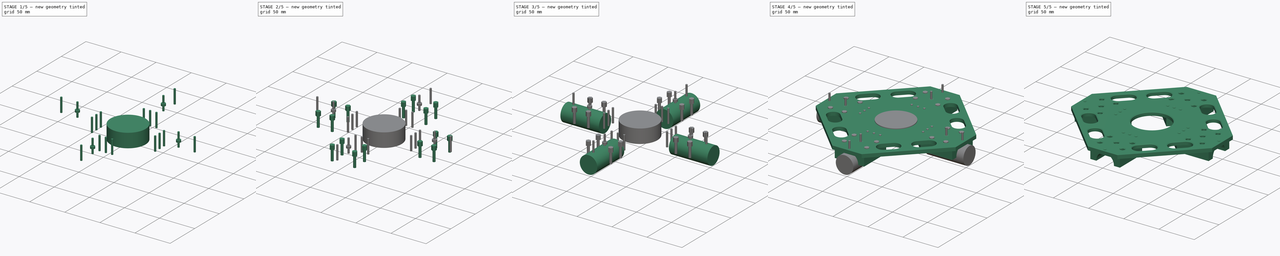
[diagram: build sequence overview — one tinted view per stage of 5, left to right]
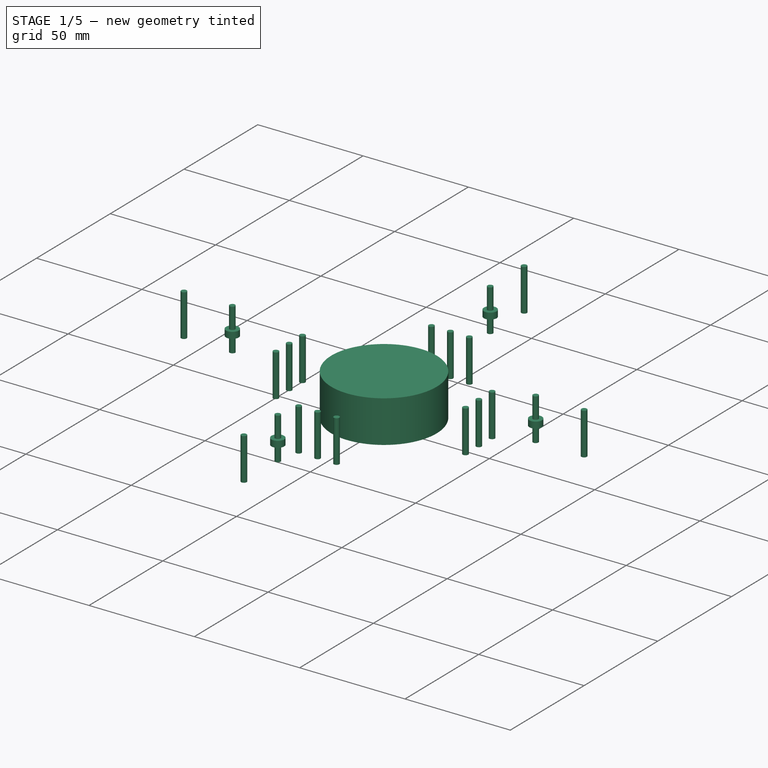
[diagram: stage 1 of 5 — iso view after this stage's code; geometry added in this stage tinted green]
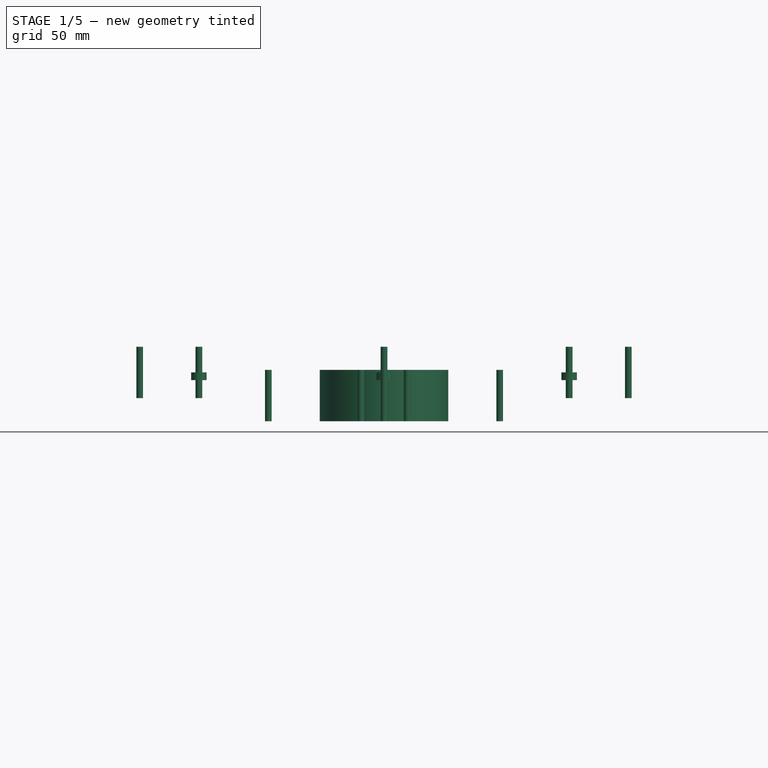
[diagram: stage 1 of 5 — front view after this stage's code; geometry added in this stage tinted green]
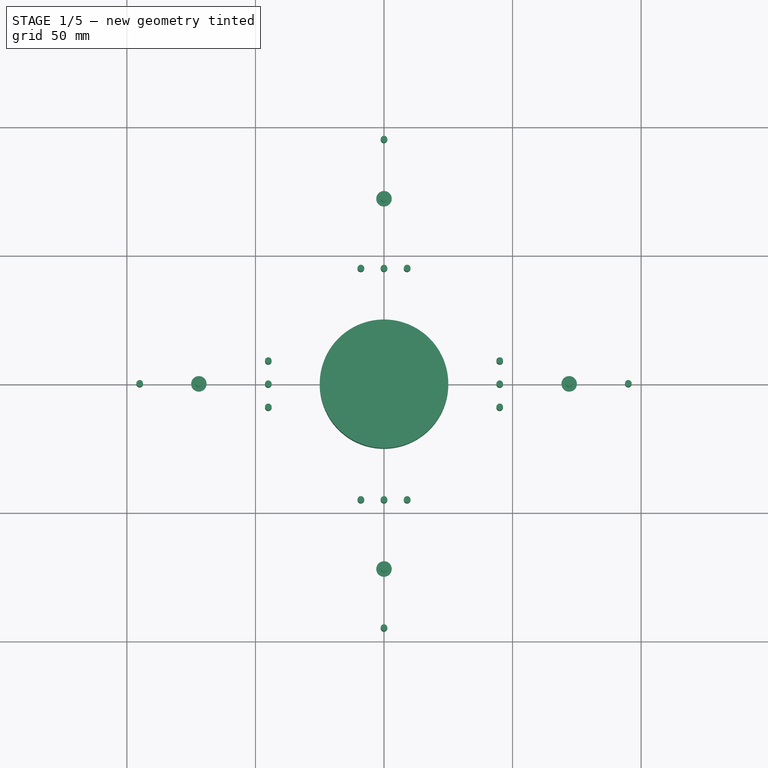
[diagram: stage 1 of 5 — top view after this stage's code; geometry added in this stage tinted green]
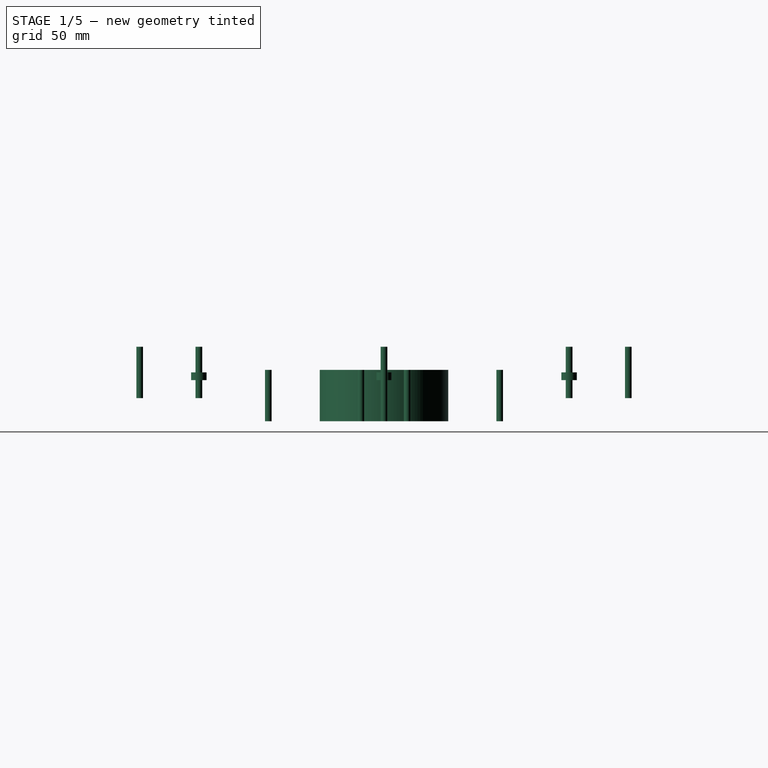
[diagram: stage 1 of 5 — right view after this stage's code; geometry added in this stage tinted green]
FCSTD DOCUMENT  (FreeCAD 0.16R6698 (Git))
Label: body-top
License: All rights reserved
LicenseURL: http://en.wikipedia.org/wiki/All_rights_reserved
objects: Part::Extrusion×13, Sketcher::SketchObject×9, Part::MultiFuse×8, Part::Cut×5, Part::Chamfer×1
note: 36 computed .brp shape members not serialized (recipe doc carries the construction recipe); baked Part::Feature solids carry a one-line shape summary decoded from their .brp

FEATURE [Part::Extrusion] Extrude009
  Base = -> Sketch005
  Dir = (0,0,6)
  Solid = true
FEATURE [Sketcher::SketchObject] Sketch006
  sketch-geometry (26):
    g0: Circle [constr] CenterX=0 CenterY=0 CenterZ=0 NormalX=0 NormalY=0 NormalZ=1 Radius=45
    g1: LineSegment [constr] StartX=0 StartY=0 StartZ=0 EndX=0 EndY=45 EndZ=0
    g2: LineSegment [constr] StartX=0 StartY=0 StartZ=0 EndX=45 EndY=0 EndZ=0
    g3: LineSegment [constr] StartX=0 StartY=0 StartZ=0 EndX=-45 EndY=0 EndZ=0
    g4: LineSegment [constr] StartX=0 StartY=0 StartZ=0 EndX=0 EndY=-45 EndZ=0
    g5: LineSegment [constr] StartX=0 StartY=45 StartZ=0 EndX=9 EndY=45 EndZ=0
    g6: LineSegment [constr] StartX=0 StartY=45 StartZ=0 EndX=-9 EndY=45 EndZ=0
    g7: LineSegment [constr] StartX=-45 StartY=0 StartZ=0 EndX=-45 EndY=9 EndZ=0
    g8: LineSegment [constr] StartX=-45 StartY=0 StartZ=0 EndX=-45 EndY=-9 EndZ=0
    g9: LineSegment [constr] StartX=0 StartY=-45 StartZ=0 EndX=9 EndY=-45 EndZ=0
    g10: LineSegment [constr] StartX=0 StartY=-45 StartZ=0 EndX=-9 EndY=-45 EndZ=0
    g11: LineSegment [constr] StartX=45 StartY=0 StartZ=0 EndX=45 EndY=9 EndZ=0
    g12: LineSegment [constr] StartX=45 StartY=0 StartZ=0 EndX=45 EndY=-9 EndZ=0
    g13: Circle CenterX=-9 CenterY=45 CenterZ=0 NormalX=0 NormalY=0 NormalZ=1 Radius=1.3
    g14: Circle CenterX=0 CenterY=45 CenterZ=0 NormalX=0 NormalY=0 NormalZ=1 Radius=1.3
    g15: Circle CenterX=9 CenterY=45 CenterZ=0 NormalX=0 NormalY=0 NormalZ=1 Radius=1.3
    g16: Circle CenterX=45 CenterY=9 CenterZ=0 NormalX=0 NormalY=0 NormalZ=1 Radius=1.3
    g17: Circle CenterX=45 CenterY=0 CenterZ=0 NormalX=0 NormalY=0 NormalZ=1 Radius=1.3
    g18: Circle CenterX=45 CenterY=-9 CenterZ=0 NormalX=0 NormalY=0 NormalZ=1 Radius=1.3
    g19: Circle CenterX=9 CenterY=-45 CenterZ=0 NormalX=0 NormalY=0 NormalZ=1 Radius=1.3
    g20: Circle CenterX=0 CenterY=-45 CenterZ=0 NormalX=0 NormalY=0 NormalZ=1 Radius=1.3
    g21: Circle CenterX=-9 CenterY=-45 CenterZ=0 NormalX=0 NormalY=0 NormalZ=1 Radius=1.3
    g22: Circle CenterX=-45 CenterY=-9 CenterZ=0 NormalX=0 NormalY=0 NormalZ=1 Radius=1.3
    g23: Circle CenterX=-45 CenterY=0 CenterZ=0 NormalX=0 NormalY=0 NormalZ=1 Radius=1.3
    g24: Circle CenterX=-45 CenterY=9 CenterZ=0 NormalX=0 NormalY=0 NormalZ=1 Radius=1.3
    g25: Circle CenterX=0 CenterY=0 CenterZ=0 NormalX=0 NormalY=0 NormalZ=1 Radius=25
  constraints (64):
    c: Coincident(g0,g-1)
    c: Radius(g0) = 45
    c: Coincident(g1,g-1)
    c: PointOnObject(g1,g0)
    c: Vertical(g1)
    c: Coincident(g2,g-1)
    c: PointOnObject(g2,g0)
    c: Horizontal(g2)
    c: Coincident(g3,g-1)
    c: Horizontal(g3)
    c: Coincident(g4,g-1)
    c: PointOnObject(g4,g0)
    c: Vertical(g4)
    c: Coincident(g5,g1)
    c: Horizontal(g5)
    c: Coincident(g6,g1)
    c: Horizontal(g6)
    c: Coincident(g7,g3)
    c: Vertical(g7)
    c: Tangent(g7,g0)
    c: Coincident(g8,g3)
    c: Vertical(g8)
    c: Coincident(g9,g4)
    c: Horizontal(g9)
    c: Horizontal(g10)
    c: Coincident(g11,g2)
    c: Vertical(g11)
    c: Coincident(g12,g2)
    c: Vertical(g12)
    c: Equal(g5,g6)
    c: Equal(g6,g7)
    c: Equal(g7,g8)
    c: Equal(g8,g10)
    c: Equal(g10,g9)
    c: Equal(g9,g12)
    c: Equal(g12,g11)
    c: Coincident(g10,g4)
    c: DistanceX(g5,g5) = 9
    c: Coincident(g13,g6)
    c: Coincident(g14,g1)
    c: Coincident(g15,g5)
    c: Coincident(g16,g11)
    c: Coincident(g17,g2)
    c: Coincident(g18,g12)
    c: Coincident(g19,g9)
    c: Coincident(g20,g4)
    c: Coincident(g21,g10)
    c: Coincident(g23,g3)
    c: Coincident(g24,g7)
    c: Coincident(g22,g8)
    c: Radius(g24) = 1.3
    c: Equal(g24,g23)
    c: Equal(g24,g22)
    c: Equal(g24,g21)
    c: Equal(g24,g20)
    c: Equal(g24,g19)
    c: Equal(g24,g18)
    c: Equal(g24,g17)
    c: Equal(g24,g16)
    c: Equal(g24,g15)
    c: Equal(g24,g14)
    c: Equal(g24,g13)
    c: Coincident(g25,g-1)
    c: Radius(g25) = 25
FEATURE [Part::Extrusion] Extrude010
  Base = -> Sketch006
  Dir = (0,0,-20)
  Placement = pos=(0,0,6) rot=(0,0,1;0rad)
  Solid = true
FEATURE [Sketcher::SketchObject] Sketch007
  sketch-geometry (10):
    g0: Circle [constr] CenterX=0 CenterY=0 CenterZ=0 NormalX=0 NormalY=0 NormalZ=1 Radius=95
    g1: Circle CenterX=0 CenterY=-95 CenterZ=0 NormalX=0 NormalY=0 NormalZ=1 Radius=1.3
    g2: Circle CenterX=95 CenterY=0 CenterZ=0 NormalX=0 NormalY=0 NormalZ=1 Radius=1.3
    g3: Circle CenterX=0 CenterY=95 CenterZ=0 NormalX=0 NormalY=0 NormalZ=1 Radius=1.3
    g4: Circle CenterX=-95 CenterY=0 CenterZ=0 NormalX=0 NormalY=0 NormalZ=1 Radius=1.3
    g5: Circle [constr] CenterX=0 CenterY=0 CenterZ=0 NormalX=0 NormalY=0 NormalZ=1 Radius=72
    g6: Circle CenterX=0 CenterY=-72 CenterZ=0 NormalX=0 NormalY=0 NormalZ=1 Radius=1.3
    g7: Circle CenterX=72 CenterY=0 CenterZ=0 NormalX=0 NormalY=0 NormalZ=1 Radius=1.3
    g8: Circle CenterX=0 CenterY=72 CenterZ=0 NormalX=0 NormalY=0 NormalZ=1 Radius=1.3
    g9: Circle CenterX=-72 CenterY=0 CenterZ=0 NormalX=0 NormalY=0 NormalZ=1 Radius=1.3
  constraints (28):
    c: PointOnObject(g3,g0)
    c: PointOnObject(g4,g0)
    c: PointOnObject(g1,g0)
    c: Coincident(g0,g-1)
    c: PointOnObject(g2,g0)
    c: Radius(g4) = 1.3
    c: Equal(g4,g3)
    c: Equal(g4,g2)
    c: Equal(g4,g1)
    c: Coincident(g5,g-1)
    c: Radius(g5) = 72
    c: PointOnObject(g6,g5)
    c: PointOnObject(g7,g5)
    c: PointOnObject(g9,g5)
    c: PointOnObject(g8,g5)
    c: Equal(g9,g8)
    c: Equal(g8,g7)
    c: Equal(g7,g6)
    c: Equal(g6,g4)
    c: PointOnObject(g9,g-1)
    c: PointOnObject(g4,g-1)
    c: Radius(g0) = 95
    c: PointOnObject(g6,g-2)
    c: PointOnObject(g1,g-2)
    c: PointOnObject(g7,g-1)
    c: PointOnObject(g2,g-1)
    c: PointOnObject(g3,g-2)
    c: PointOnObject(g8,g-2)
FEATURE [Part::Extrusion] Extrude011
  Base = -> Sketch007
  Dir = (0,0,20)
  Placement = pos=(0,0,-5) rot=(0,0,1;0rad)
  Solid = true
FEATURE [Sketcher::SketchObject] Sketch008
  sketch-geometry (5):
    g0: Circle [constr] CenterX=0 CenterY=0 CenterZ=0 NormalX=0 NormalY=0 NormalZ=1 Radius=72
    g1: Circle CenterX=0 CenterY=-72 CenterZ=0 NormalX=0 NormalY=0 NormalZ=1 Radius=3
    g2: Circle CenterX=72 CenterY=0 CenterZ=0 NormalX=0 NormalY=0 NormalZ=1 Radius=3
    g3: Circle CenterX=0 CenterY=72 CenterZ=0 NormalX=0 NormalY=0 NormalZ=1 Radius=3
    g4: Circle CenterX=-72 CenterY=0 CenterZ=0 NormalX=0 NormalY=0 NormalZ=1 Radius=3
  constraints (14):
    c: Coincident(g0,g-1)
    c: Radius(g0) = 72
    c: PointOnObject(g1,g0)
    c: PointOnObject(g2,g0)
    c: PointOnObject(g4,g0)
    c: PointOnObject(g3,g0)
    c: Equal(g4,g3)
    c: Equal(g3,g2)
    c: Equal(g2,g1)
    c: PointOnObject(g2,g-1)
    c: PointOnObject(g3,g-2)
    c: PointOnObject(g1,g-2)
    c: PointOnObject(g4,g-1)
    c: Radius(g4) = 3
FEATURE [Part::Extrusion] Extrude012
  Base = -> Sketch008
  Dir = (0,0,3)
  Placement = pos=(0,0,2) rot=(0,0,1;0rad)
  Solid = true
FEATURE [Part::MultiFuse] Fusion007
  Shapes = -> [Extrude012,Extrude011]
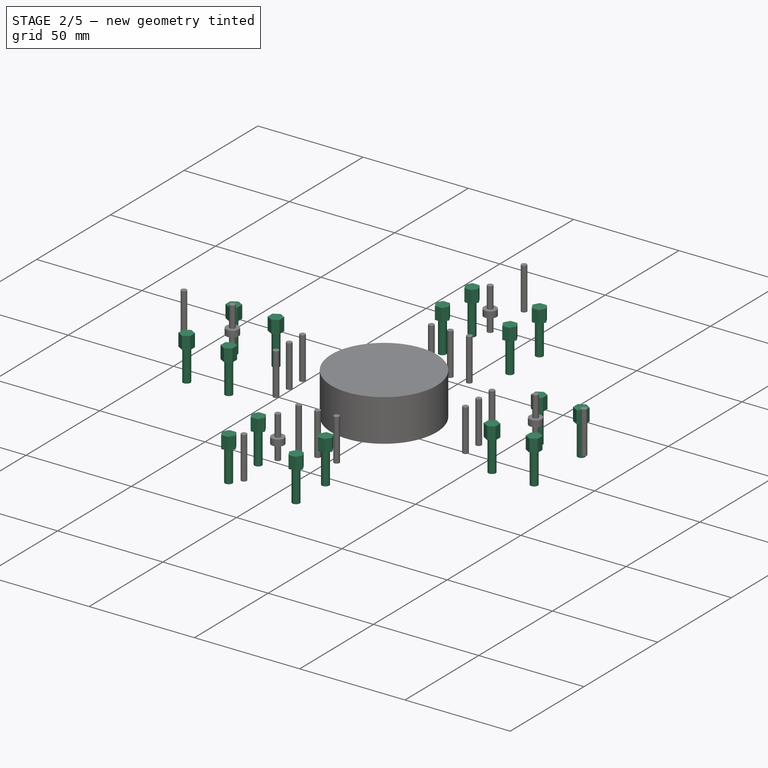
[diagram: stage 2 of 5 — iso view after this stage's code; geometry added in this stage tinted green]
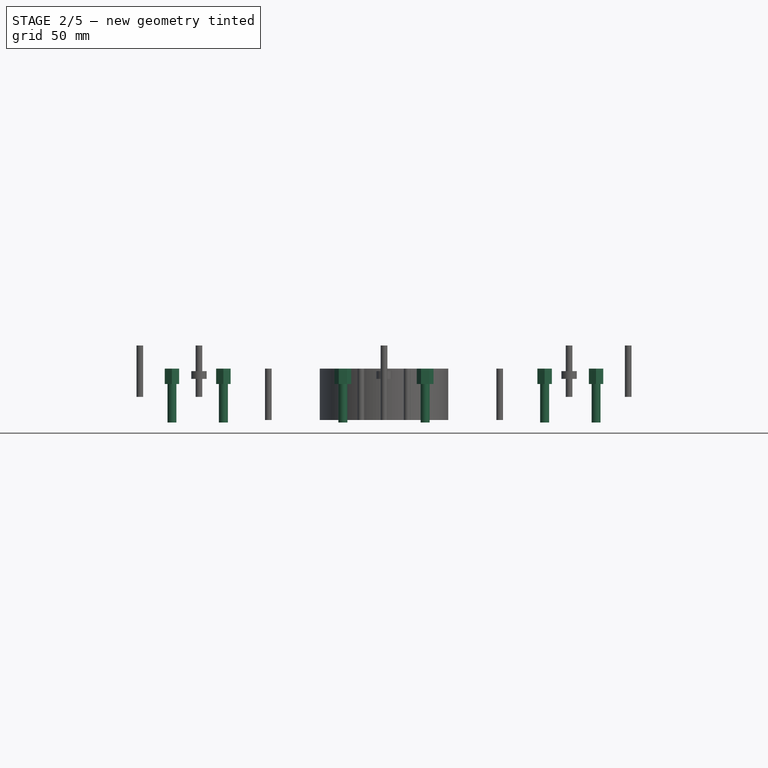
[diagram: stage 2 of 5 — front view after this stage's code; geometry added in this stage tinted green]
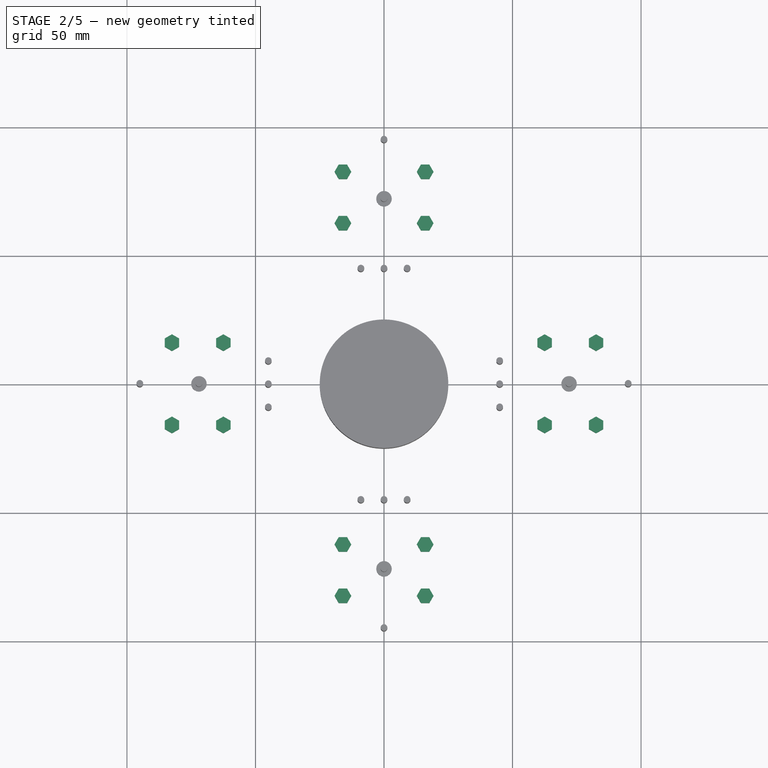
[diagram: stage 2 of 5 — top view after this stage's code; geometry added in this stage tinted green]
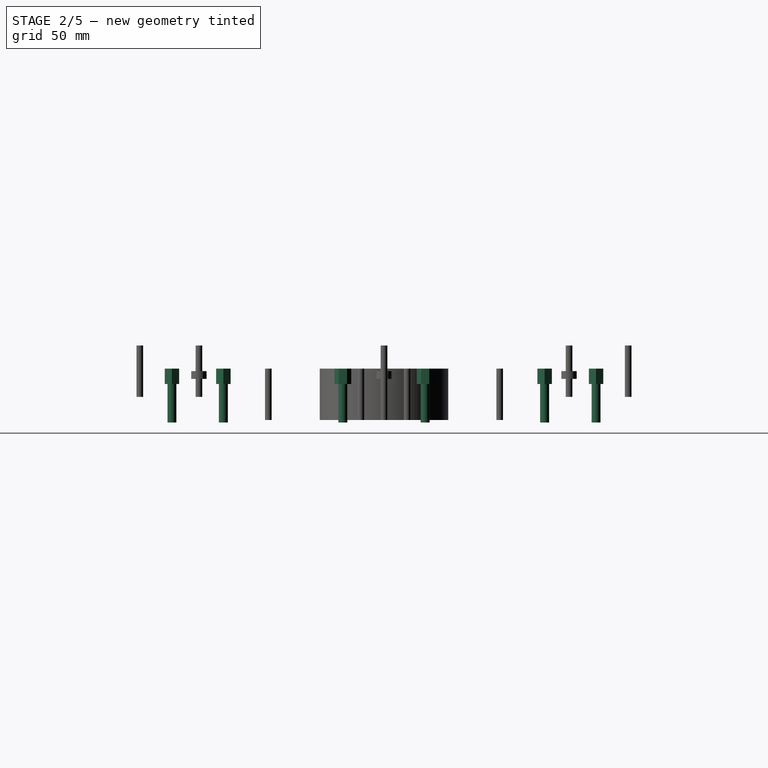
[diagram: stage 2 of 5 — right view after this stage's code; geometry added in this stage tinted green]
FEATURE [Sketcher::SketchObject] Sketch004
  sketch-geometry (8):
    g0: LineSegment [constr] StartX=-16 StartY=10 StartZ=0 EndX=16 EndY=10 EndZ=0
    g1: LineSegment [constr] StartX=16 StartY=10 StartZ=0 EndX=16 EndY=-10 EndZ=0
    g2: LineSegment [constr] StartX=16 StartY=-10 StartZ=0 EndX=-16 EndY=-10 EndZ=0
    g3: LineSegment [constr] StartX=-16 StartY=-10 StartZ=0 EndX=-16 EndY=10 EndZ=0
    g4: Circle CenterX=-16 CenterY=10 CenterZ=0 NormalX=0 NormalY=0 NormalZ=1 Radius=1.75
    g5: Circle CenterX=16 CenterY=10 CenterZ=0 NormalX=0 NormalY=0 NormalZ=1 Radius=1.75
    g6: Circle CenterX=16 CenterY=-10 CenterZ=0 NormalX=0 NormalY=0 NormalZ=1 Radius=1.75
    g7: Circle CenterX=-16 CenterY=-10 CenterZ=0 NormalX=0 NormalY=0 NormalZ=1 Radius=1.75
  constraints (20):
    c: Coincident(g0,g1)
    c: Coincident(g1,g2)
    c: Coincident(g2,g3)
    c: Coincident(g3,g0)
    c: Horizontal(g0)
    c: Horizontal(g2)
    c: Vertical(g1)
    c: Vertical(g3)
    c: DistanceX(g2,g2) = 32
    c: DistanceY(g1,g1) = 20
    c: Symmetric(g2,g1,g-2)
    c: Coincident(g4,g0)
    c: Coincident(g5,g0)
    c: Coincident(g6,g1)
    c: Coincident(g7,g2)
    c: Equal(g5,g4)
    c: Equal(g4,g7)
    c: Equal(g7,g6)
    c: Radius(g4) = 1.75
    c: Symmetric(g0,g1,g-1)
FEATURE [Sketcher::SketchObject] Sketch005
  sketch-geometry (32):
    g0: LineSegment [constr] StartX=-16 StartY=10 StartZ=0 EndX=16 EndY=10 EndZ=0
    g1: LineSegment [constr] StartX=16 StartY=10 StartZ=0 EndX=16 EndY=-10 EndZ=0
    g2: LineSegment [constr] StartX=16 StartY=-10 StartZ=0 EndX=-16 EndY=-10 EndZ=0
    g3: LineSegment [constr] StartX=-16 StartY=-10 StartZ=0 EndX=-16 EndY=10 EndZ=0
    g4: LineSegment StartX=-14.375 StartY=12.8146 StartZ=0 EndX=-17.625 EndY=12.8146 EndZ=0
    g5: LineSegment StartX=-17.625 StartY=12.8146 StartZ=0 EndX=-19.25 EndY=10 EndZ=0
    g6: LineSegment StartX=-19.25 StartY=10 StartZ=0 EndX=-17.625 EndY=7.18542 EndZ=0
    g7: LineSegment StartX=-17.625 StartY=7.18542 StartZ=0 EndX=-14.375 EndY=7.18542 EndZ=0
    g8: LineSegment StartX=-14.375 StartY=7.18542 StartZ=0 EndX=-12.75 EndY=10 EndZ=0
    g9: LineSegment StartX=-12.75 StartY=10 StartZ=0 EndX=-14.375 EndY=12.8146 EndZ=0
    g10: Circle [constr] CenterX=-16 CenterY=10 CenterZ=0 NormalX=0 NormalY=0 NormalZ=1 Radius=3.25
    g11: LineSegment StartX=17.625 StartY=7.18542 StartZ=0 EndX=19.25 EndY=10 EndZ=0
    g12: LineSegment StartX=19.25 StartY=10 StartZ=0 EndX=17.625 EndY=12.8146 EndZ=0
    g13: LineSegment StartX=17.625 StartY=12.8146 StartZ=0 EndX=14.375 EndY=12.8146 EndZ=0
    g14: LineSegment StartX=14.375 StartY=12.8146 StartZ=0 EndX=12.75 EndY=10 EndZ=0
    g15: LineSegment StartX=12.75 StartY=10 StartZ=0 EndX=14.375 EndY=7.18542 EndZ=0
    g16: LineSegment StartX=14.375 StartY=7.18542 StartZ=0 EndX=17.625 EndY=7.18542 EndZ=0
    g17: Circle [constr] CenterX=16 CenterY=10 CenterZ=0 NormalX=0 NormalY=0 NormalZ=1 Radius=3.25
    g18: LineSegment StartX=19.25 StartY=-10 StartZ=0 EndX=17.625 EndY=-7.18542 EndZ=0
    g19: LineSegment StartX=17.625 StartY=-7.18542 StartZ=0 EndX=14.375 EndY=-7.18542 EndZ=0
    g20: LineSegment StartX=14.375 StartY=-7.18542 StartZ=0 EndX=12.75 EndY=-10 EndZ=0
    g21: LineSegment StartX=12.75 StartY=-10 StartZ=0 EndX=14.375 EndY=-12.8146 EndZ=0
    g22: LineSegment StartX=14.375 StartY=-12.8146 StartZ=0 EndX=17.625 EndY=-12.8146 EndZ=0
    g23: LineSegment StartX=17.625 StartY=-12.8146 StartZ=0 EndX=19.25 EndY=-10 EndZ=0
    g24: Circle [constr] CenterX=16 CenterY=-10 CenterZ=0 NormalX=0 NormalY=0 NormalZ=1 Radius=3.25
    g25: LineSegment StartX=-14.375 StartY=-7.18542 StartZ=0 EndX=-17.625 EndY=-7.18542 EndZ=0
    g26: LineSegment StartX=-17.625 StartY=-7.18542 StartZ=0 EndX=-19.25 EndY=-10 EndZ=0
    g27: LineSegment StartX=-19.25 StartY=-10 StartZ=0 EndX=-17.625 EndY=-12.8146 EndZ=0
    g28: LineSegment StartX=-17.625 StartY=-12.8146 StartZ=0 EndX=-14.375 EndY=-12.8146 EndZ=0
    g29: LineSegment StartX=-14.375 StartY=-12.8146 StartZ=0 EndX=-12.75 EndY=-10 EndZ=0
    g30: LineSegment StartX=-12.75 StartY=-10 StartZ=0 EndX=-14.375 EndY=-7.18542 EndZ=0
    g31: Circle [constr] CenterX=-16 CenterY=-10 CenterZ=0 NormalX=0 NormalY=0 NormalZ=1 Radius=3.25
  constraints (76):
    c: Coincident(g0,g1)
    c: Coincident(g1,g2)
    c: Coincident(g2,g3)
    c: Coincident(g3,g0)
    c: Horizontal(g0)
    c: Horizontal(g2)
    c: Vertical(g1)
    c: Vertical(g3)
    c: DistanceX(g2,g2) = 32
    c: DistanceY(g1,g1) = 20
    c: Symmetric(g2,g1,g-2)
    c: Coincident(g4,g5)
    c: Coincident(g5,g6)
    c: Coincident(g6,g7)
    c: Coincident(g7,g8)
    c: Coincident(g8,g9)
    c: Coincident(g9,g4)
    c: Equal(g4, g5-g9) x5
    c: PointOnObject(g4,g10)
    c: PointOnObject(g5,g10)
    c: PointOnObject(g6,g10)
    c: PointOnObject(g7,g10)
    c: PointOnObject(g8,g10)
    c: PointOnObject(g9,g10)
    c: Coincident(g10,g0)
    c: Horizontal(g4)
    c: Radius(g10) = 3.25
    c: Coincident(g11,g12)
    c: Coincident(g12,g13)
    c: Coincident(g13,g14)
    c: Coincident(g14,g15)
    c: Coincident(g15,g16)
    c: Coincident(g16,g11)
    c: Equal(g11, g12-g16) x5
    c: PointOnObject(g11,g17)
    c: PointOnObject(g12,g17)
    c: PointOnObject(g13,g17)
    c: PointOnObject(g14,g17)
    c: PointOnObject(g15,g17)
    c: PointOnObject(g16,g17)
    c: Coincident(g17,g0)
    c: Horizontal(g16)
    c: Coincident(g18,g19)
    c: Coincident(g19,g20)
    c: Coincident(g20,g21)
    c: Coincident(g21,g22)
    c: Coincident(g22,g23)
    c: Coincident(g23,g18)
    c: Equal(g18, g19-g23) x5
    c: PointOnObject(g18,g24)
    c: PointOnObject(g19,g24)
    c: PointOnObject(g20,g24)
    c: PointOnObject(g21,g24)
    c: PointOnObject(g22,g24)
    c: PointOnObject(g23,g24)
    c: Coincident(g24,g1)
    c: Horizontal(g19)
    c: Coincident(g25,g26)
    c: Coincident(g26,g27)
    c: Coincident(g27,g28)
    c: Coincident(g28,g29)
    c: Coincident(g29,g30)
    c: Coincident(g30,g25)
    c: Equal(g25, g26-g30) x5
    c: PointOnObject(g25,g31)
    c: PointOnObject(g26,g31)
    c: PointOnObject(g27,g31)
    c: PointOnObject(g28,g31)
    c: PointOnObject(g29,g31)
    c: PointOnObject(g30,g31)
    c: Coincident(g31,g2)
    c: Horizontal(g25)
    c: Equal(g31,g10)
    c: Equal(g10,g24)
    c: Equal(g24,g17)
    c: Symmetric(g0,g1,g-1)
FEATURE [Part::Extrusion] Extrude008
  Base = -> Sketch004
  Dir = (0,0,-15)
  Solid = true
FEATURE [Part::MultiFuse] Fusion002  label="NutHoles"
  Placement = pos=(0,72.5,0) rot=(0,0,1;0rad)
  Shapes = -> [Extrude008,Extrude009]
FEATURE [Part::MultiFuse] Fusion003  label="NutHoles001"
  Placement = pos=(0,-72.5,0) rot=(0,0,1;0rad)
  Shapes = -> [Extrude008,Extrude009]
FEATURE [Part::MultiFuse] Fusion004  label="NutHoles002"
  Placement = pos=(72.5,0,0) rot=(0,0,1;1.5708rad)
  Shapes = -> [Extrude008,Extrude009]
FEATURE [Part::MultiFuse] Fusion005  label="NutHoles003"
  Placement = pos=(-72.5,0,0) rot=(0,0,1;1.5708rad)
  Shapes = -> [Extrude008,Extrude009]
FEATURE [Part::MultiFuse] Fusion006  label="LegsMountingHoles"
  Shapes = -> [Fusion002,Fusion005,Fusion003,Fusion004]
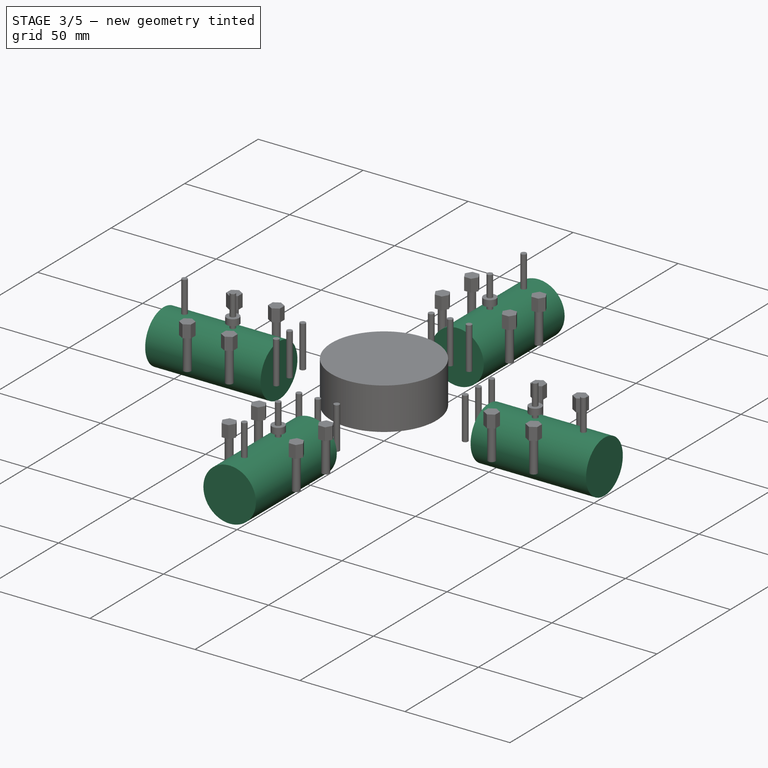
[diagram: stage 3 of 5 — iso view after this stage's code; geometry added in this stage tinted green]
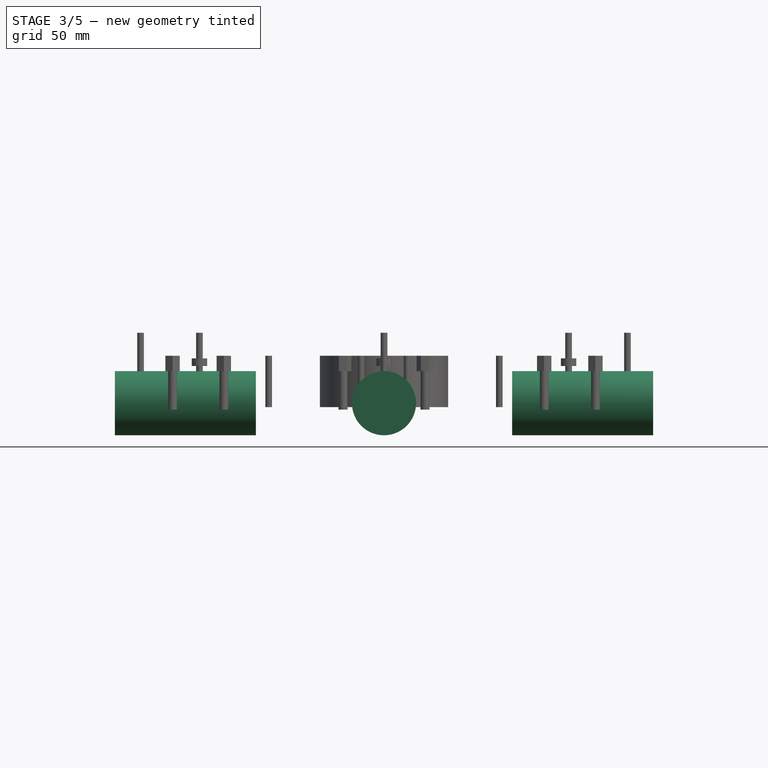
[diagram: stage 3 of 5 — front view after this stage's code; geometry added in this stage tinted green]
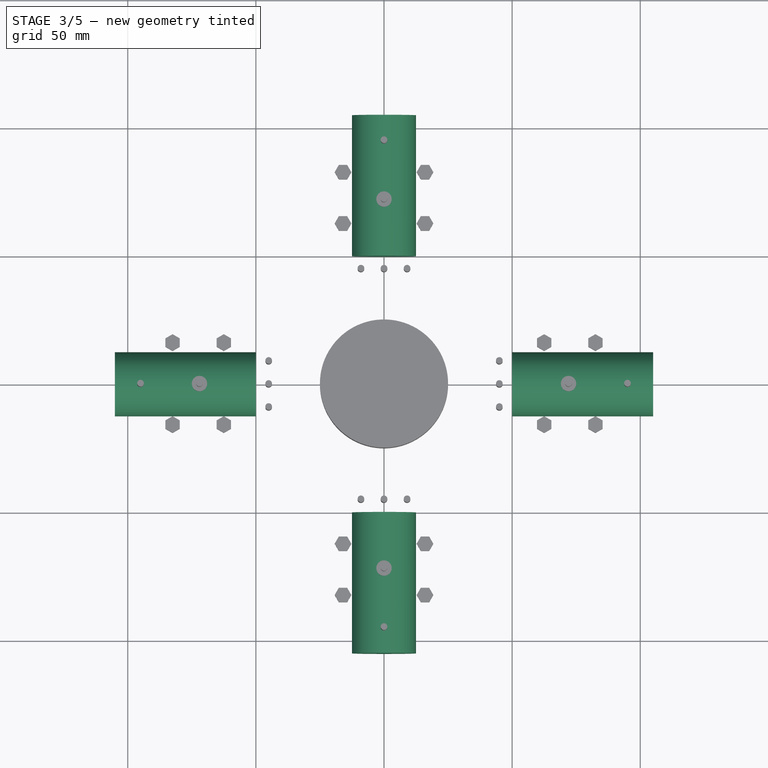
[diagram: stage 3 of 5 — top view after this stage's code; geometry added in this stage tinted green]
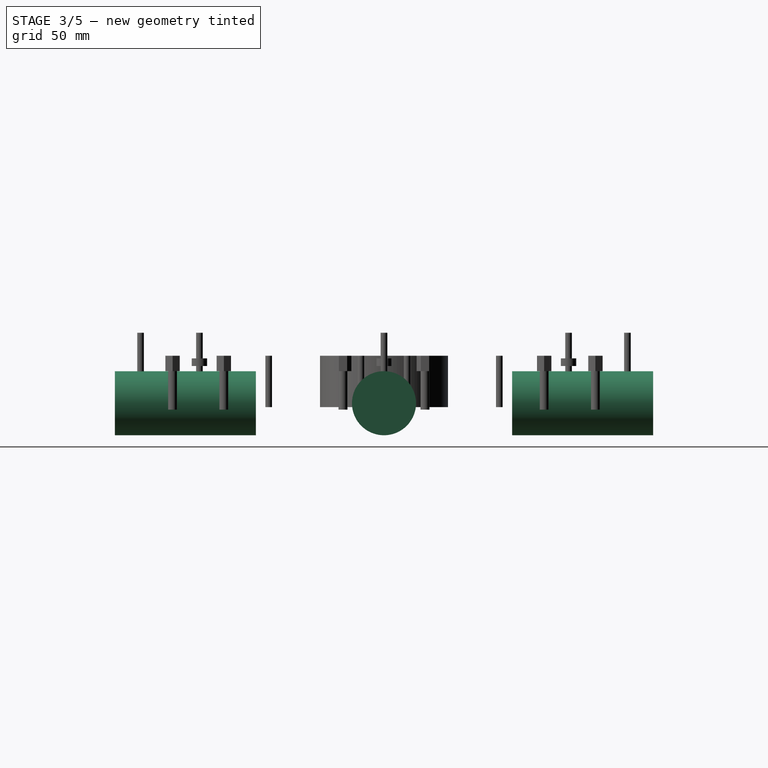
[diagram: stage 3 of 5 — right view after this stage's code; geometry added in this stage tinted green]
FEATURE [Sketcher::SketchObject] Sketch003
  sketch-geometry (1):
    g0: Circle CenterX=0 CenterY=0 CenterZ=0 NormalX=0 NormalY=0 NormalZ=1 Radius=12.5
  constraints (2):
    c: Coincident(g0,g-1)
    c: Radius(g0) = 12.5
FEATURE [Part::Extrusion] Extrude004
  Base = -> Sketch003
  Dir = (0,0,55)
  Placement = pos=(-50,0,-12.5) rot=(0,-1,0;1.5708rad)
  Solid = true
FEATURE [Part::Extrusion] Extrude005
  Base = -> Sketch003
  Dir = (0,0,55)
  Placement = pos=(50,0,-12.5) rot=(0,1,0;1.5708rad)
  Solid = true
FEATURE [Part::Extrusion] Extrude006
  Base = -> Sketch003
  Dir = (0,0,55)
  Placement = pos=(0,-50,-12.5) rot=(1,0,0;1.5708rad)
  Solid = true
FEATURE [Part::Extrusion] Extrude007
  Base = -> Sketch003
  Dir = (0,0,55)
  Placement = pos=(0,50,-12.5) rot=(-1,0,0;1.5708rad)
  Solid = true
FEATURE [Part::MultiFuse] Fusion001  label="Tubes"
  Shapes = -> [Extrude004,Extrude007,Extrude005,Extrude006]
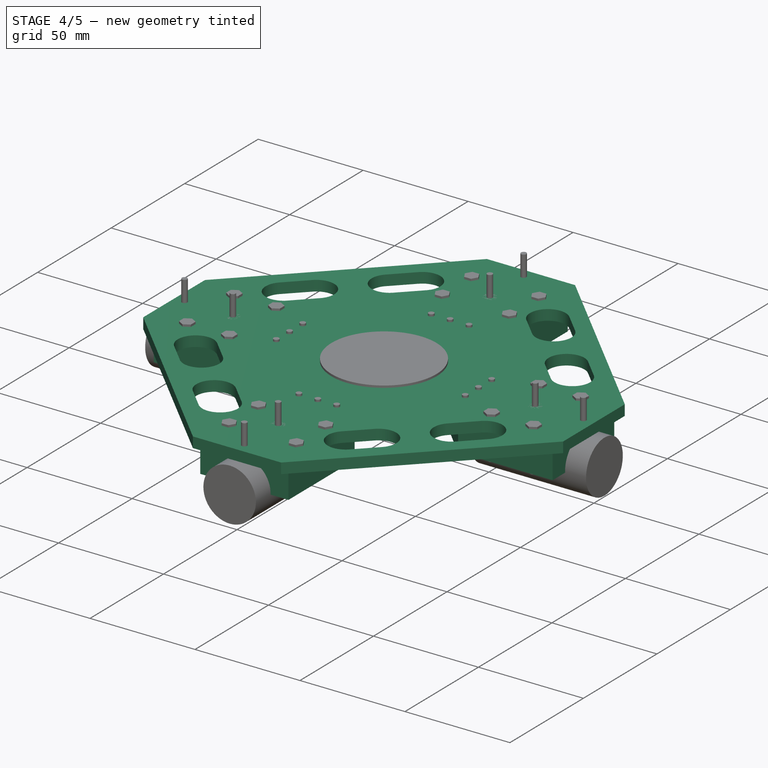
[diagram: stage 4 of 5 — iso view after this stage's code; geometry added in this stage tinted green]
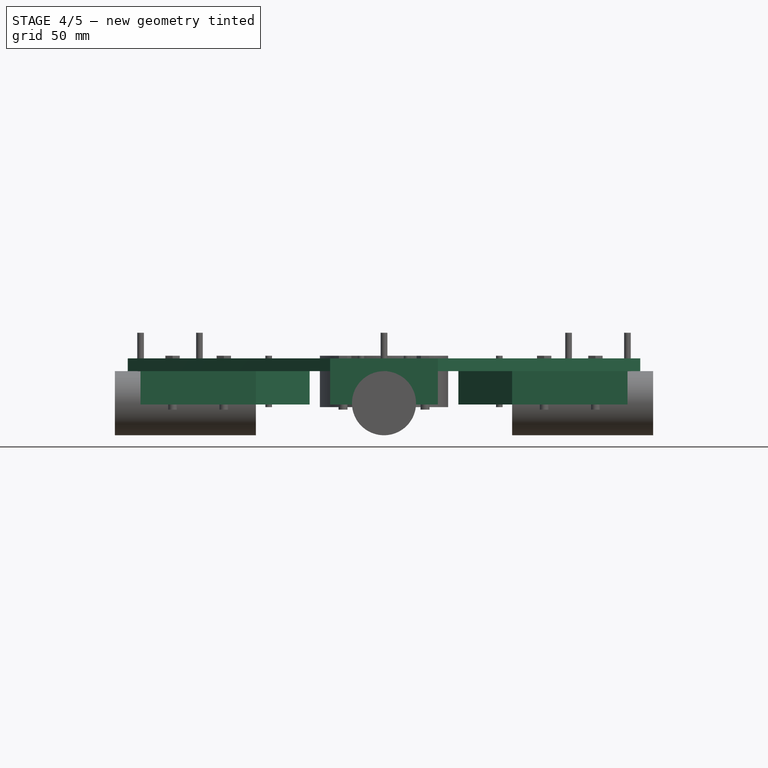
[diagram: stage 4 of 5 — front view after this stage's code; geometry added in this stage tinted green]
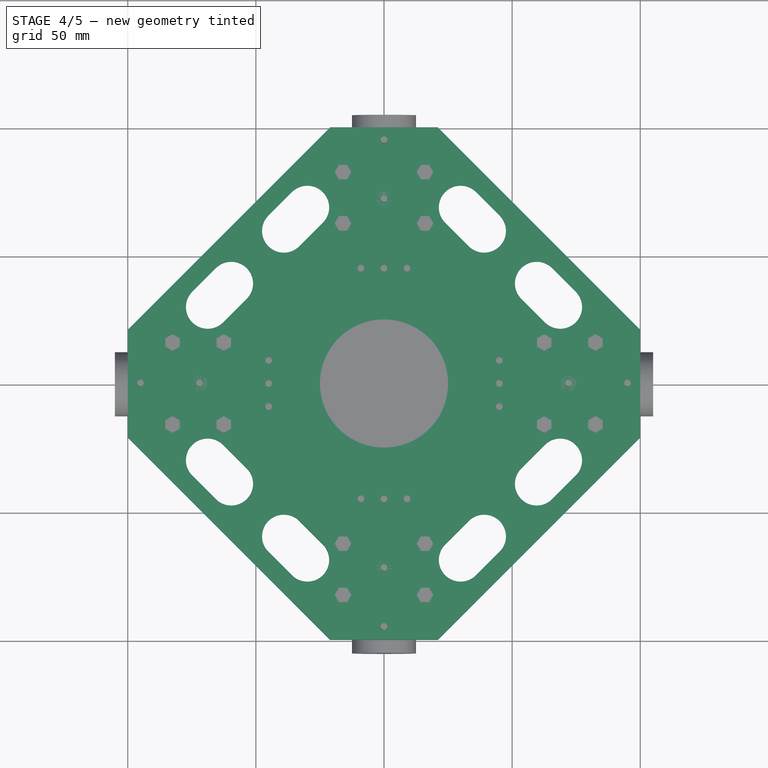
[diagram: stage 4 of 5 — top view after this stage's code; geometry added in this stage tinted green]
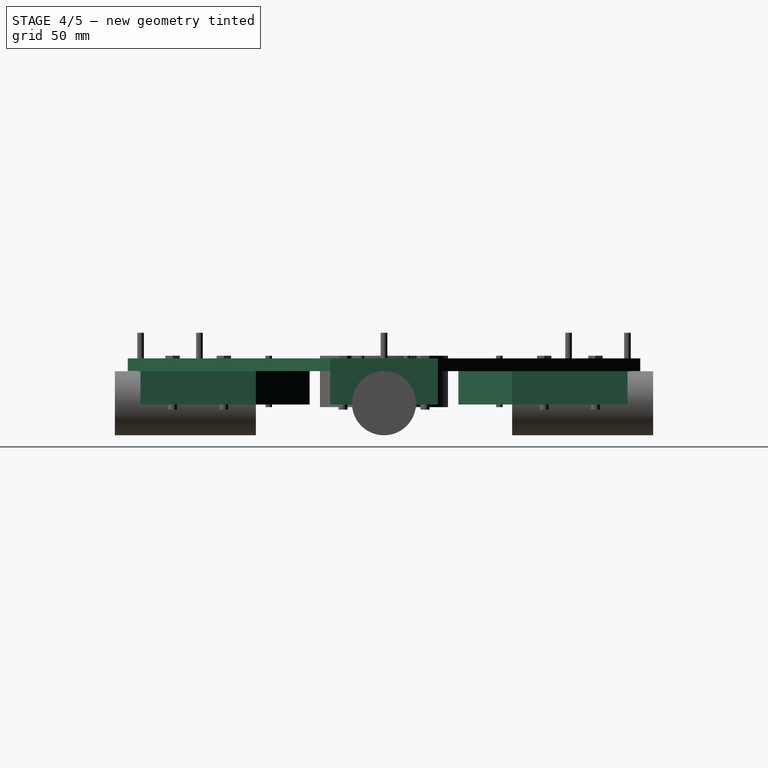
[diagram: stage 4 of 5 — right view after this stage's code; geometry added in this stage tinted green]
FEATURE [Sketcher::SketchObject] Sketch
  sketch-geometry (50):
    g0: Circle [constr] CenterX=0 CenterY=0 CenterZ=0 NormalX=0 NormalY=0 NormalZ=1 Radius=102.181
    g1: LineSegment StartX=-21 StartY=100 StartZ=0 EndX=21 EndY=100 EndZ=0
    g2: LineSegment StartX=21 StartY=100 StartZ=0 EndX=100 EndY=21 EndZ=0
    g3: LineSegment StartX=100 StartY=21 StartZ=0 EndX=100 EndY=-21 EndZ=0
    g4: LineSegment StartX=100 StartY=-21 StartZ=0 EndX=21 EndY=-100 EndZ=0
    g5: LineSegment StartX=21 StartY=-100 StartZ=0 EndX=-21 EndY=-100 EndZ=0
    g6: LineSegment StartX=-21 StartY=-100 StartZ=0 EndX=-100 EndY=-21 EndZ=0
    g7: LineSegment StartX=-100 StartY=-21 StartZ=0 EndX=-100 EndY=21 EndZ=0
    g8: LineSegment StartX=-100 StartY=21 StartZ=0 EndX=-21 EndY=100 EndZ=0
    g9: Circle [constr] CenterX=0 CenterY=0 CenterZ=0 NormalX=0 NormalY=0 NormalZ=1 Radius=75
    g10: ArcOfCircle CenterX=-68.7848 CenterY=29.8939 CenterZ=0 NormalX=0 NormalY=0 NormalZ=1 Radius=8.5 StartAngle=2.35619 EndAngle=5.49779
    g11: ArcOfCircle CenterX=-59.5924 CenterY=39.0863 CenterZ=0 NormalX=0 NormalY=0 NormalZ=1 Radius=8.5 StartAngle=5.49779 EndAngle=8.63938
    g12: LineSegment StartX=-62.7744 StartY=23.8835 StartZ=0 EndX=-53.582 EndY=33.0759 EndZ=0
    g13: LineSegment StartX=-74.7952 StartY=35.9044 StartZ=0 EndX=-65.6028 EndY=45.0967 EndZ=0
    g14: ArcOfCircle CenterX=-29.8939 CenterY=68.7848 CenterZ=0 NormalX=0 NormalY=0 NormalZ=1 Radius=8.5 StartAngle=5.49779 EndAngle=8.63938
    g15: ArcOfCircle CenterX=-39.0863 CenterY=59.5924 CenterZ=0 NormalX=0 NormalY=0 NormalZ=1 Radius=8.5 StartAngle=2.35619 EndAngle=5.49779
    g16: LineSegment StartX=-35.9044 StartY=74.7952 StartZ=0 EndX=-45.0967 EndY=65.6028 EndZ=0
    g17: LineSegment StartX=-23.8835 StartY=62.7744 StartZ=0 EndX=-33.0759 EndY=53.582 EndZ=0
    g18: LineSegment [constr] StartX=-29.8939 StartY=68.7848 StartZ=0 EndX=29.8939 EndY=68.7848 EndZ=0
    g19: LineSegment [constr] StartX=29.8939 StartY=68.7848 StartZ=0 EndX=68.7848 EndY=29.8939 EndZ=0
    g20: LineSegment [constr] StartX=68.7848 StartY=29.8939 StartZ=0 EndX=68.7848 EndY=-29.8939 EndZ=0
    g21: LineSegment [constr] StartX=68.7848 StartY=-29.8939 StartZ=0 EndX=29.8939 EndY=-68.7848 EndZ=0
    g22: LineSegment [constr] StartX=29.8939 StartY=-68.7848 StartZ=0 EndX=-29.8939 EndY=-68.7848 EndZ=0
    g23: LineSegment [constr] StartX=-29.8939 StartY=-68.7848 StartZ=0 EndX=-68.7848 EndY=-29.8939 EndZ=0
    g24: LineSegment [constr] StartX=-68.7848 StartY=-29.8939 StartZ=0 EndX=-68.7848 EndY=29.8939 EndZ=0
    g25: LineSegment [constr] StartX=-68.7848 StartY=29.8939 StartZ=0 EndX=-29.8939 EndY=68.7848 EndZ=0
    g26: ArcOfCircle CenterX=29.8939 CenterY=-68.7848 CenterZ=0 NormalX=0 NormalY=0 NormalZ=1 Radius=8.5 StartAngle=2.35619 EndAngle=5.49779
    g27: ArcOfCircle CenterX=39.0863 CenterY=-59.5924 CenterZ=0 NormalX=0 NormalY=0 NormalZ=1 Radius=8.5 StartAngle=5.49779 EndAngle=8.63938
    g28: LineSegment StartX=35.9044 StartY=-74.7952 StartZ=0 EndX=45.0967 EndY=-65.6028 EndZ=0
    g29: LineSegment StartX=23.8835 StartY=-62.7744 StartZ=0 EndX=33.0759 EndY=-53.582 EndZ=0
    g30: ArcOfCircle CenterX=68.7848 CenterY=-29.8939 CenterZ=0 NormalX=0 NormalY=0 NormalZ=1 Radius=8.5 StartAngle=5.49779 EndAngle=8.63938
    g31: ArcOfCircle CenterX=59.5924 CenterY=-39.0863 CenterZ=0 NormalX=0 NormalY=0 NormalZ=1 Radius=8.5 StartAngle=2.35619 EndAngle=5.49779
    g32: LineSegment StartX=62.7744 StartY=-23.8835 StartZ=0 EndX=53.582 EndY=-33.0759 EndZ=0
    g33: LineSegment StartX=74.7952 StartY=-35.9044 StartZ=0 EndX=65.6028 EndY=-45.0967 EndZ=0
    g34: ArcOfCircle CenterX=-68.7848 CenterY=-29.8939 CenterZ=0 NormalX=0 NormalY=0 NormalZ=1 Radius=8.5 StartAngle=0.785398 EndAngle=3.92699
    g35: ArcOfCircle CenterX=-59.5924 CenterY=-39.0863 CenterZ=0 NormalX=0 NormalY=0 NormalZ=1 Radius=8.5 StartAngle=3.92699 EndAngle=7.06858
    g36: LineSegment StartX=-74.7952 StartY=-35.9044 StartZ=0 EndX=-65.6028 EndY=-45.0967 EndZ=0
    g37: LineSegment StartX=-62.7744 StartY=-23.8835 StartZ=0 EndX=-53.582 EndY=-33.0759 EndZ=0
    g38: ArcOfCircle CenterX=-29.8939 CenterY=-68.7848 CenterZ=0 NormalX=0 NormalY=0 NormalZ=1 Radius=8.5 StartAngle=3.92699 EndAngle=7.06858
    g39: ArcOfCircle CenterX=-39.0863 CenterY=-59.5924 CenterZ=0 NormalX=0 NormalY=0 NormalZ=1 Radius=8.5 StartAngle=0.785398 EndAngle=3.92699
    g40: LineSegment StartX=-23.8835 StartY=-62.7744 StartZ=0 EndX=-33.0759 EndY=-53.582 EndZ=0
    g41: LineSegment StartX=-35.9044 StartY=-74.7952 StartZ=0 EndX=-45.0967 EndY=-65.6028 EndZ=0
    g42: ArcOfCircle CenterX=29.8939 CenterY=68.7848 CenterZ=0 NormalX=0 NormalY=0 NormalZ=1 Radius=8.5 StartAngle=0.785398 EndAngle=3.92699
    g43: ArcOfCircle CenterX=39.0863 CenterY=59.5924 CenterZ=0 NormalX=0 NormalY=0 NormalZ=1 Radius=8.5 StartAngle=3.92699 EndAngle=7.06858
    g44: LineSegment StartX=23.8835 StartY=62.7744 StartZ=0 EndX=33.0759 EndY=53.582 EndZ=0
    g45: LineSegment StartX=35.9044 StartY=74.7952 StartZ=0 EndX=45.0967 EndY=65.6028 EndZ=0
    g46: ArcOfCircle CenterX=68.7848 CenterY=29.8939 CenterZ=0 NormalX=0 NormalY=0 NormalZ=1 Radius=8.5 StartAngle=3.92699 EndAngle=7.06858
    g47: ArcOfCircle CenterX=59.5924 CenterY=39.0863 CenterZ=0 NormalX=0 NormalY=0 NormalZ=1 Radius=8.5 StartAngle=0.785398 EndAngle=3.92699
    g48: LineSegment StartX=74.7952 StartY=35.9044 StartZ=0 EndX=65.6028 EndY=45.0967 EndZ=0
    g49: LineSegment StartX=62.7744 StartY=23.8835 StartZ=0 EndX=53.582 EndY=33.0759 EndZ=0
  constraints (125):
    c: Coincident(g0,g-1)
    c: PointOnObject(g1,g0)
    c: PointOnObject(g1,g0)
    c: Horizontal(g1)
    c: Coincident(g1,g2)
    c: PointOnObject(g2,g0)
    c: Coincident(g2,g3)
    c: PointOnObject(g3,g0)
    c: Vertical(g3)
    c: Coincident(g3,g4)
    c: PointOnObject(g4,g0)
    c: Coincident(g4,g5)
    c: PointOnObject(g5,g0)
    c: Horizontal(g5)
    c: Coincident(g5,g6)
    c: PointOnObject(g6,g0)
    c: Coincident(g6,g7)
    c: PointOnObject(g7,g0)
    c: Vertical(g7)
    c: Coincident(g7,g8)
    c: Coincident(g8,g1)
    c: Equal(g7,g5)
    c: Equal(g5,g3)
    c: Equal(g3,g1)
    c: Distance(g5) = 42
    c: DistanceX(g6,g3) = 200
    c: Coincident(g9,g-1)
    c: Radius(g9) = 75
    c: Tangent(g10,g13) = 1.5708
    c: Tangent(g10,g12) = -1.5708
    c: Tangent(g12,g11) = -1.5708
    c: Tangent(g13,g11) = 1.5708
    c: Equal(g10,g11)
    c: Tangent(g14,g17) = 1.5708
    c: Tangent(g14,g16) = -1.5708
    c: Tangent(g16,g15) = -1.5708
    c: Tangent(g17,g15) = 1.5708
    c: Equal(g14,g15)
    c: Equal(g11,g15)
    c: Equal(g12,g17)
    c: Distance(g12) = 13
    c: Radius(g11) = 8.5
    c: PointOnObject(g18,g9)
    c: PointOnObject(g18,g9)
    c: Horizontal(g18)
    c: Coincident(g18,g19)
    c: PointOnObject(g19,g9)
    c: Coincident(g19,g20)
    c: Vertical(g20)
    c: Coincident(g20,g21)
    c: PointOnObject(g21,g9)
    c: Coincident(g21,g22)
    c: PointOnObject(g22,g9)
    c: Coincident(g22,g23)
    c: Coincident(g23,g24)
    c: PointOnObject(g24,g9)
    c: Vertical(g24)
    c: Coincident(g24,g25)
    c: Coincident(g25,g18)
    c: PointOnObject(g23,g9)
    c: Equal(g23,g21)
    c: Equal(g21,g19)
    c: Equal(g19,g25)
    c: Distance(g25) = 55
    c: Coincident(g10,g24)
    c: Coincident(g14,g18)
    c: PointOnObject(g15,g25)
    c: PointOnObject(g11,g25)
    c: Equal(g24,g22)
    c: Equal(g22,g20)
    c: Equal(g20,g18)
    c: Tangent(g26,g29) = 1.5708
    c: Tangent(g26,g28) = -1.5708
    c: Tangent(g28,g27) = -1.5708
    c: Tangent(g29,g27) = 1.5708
    c: Equal(g26,g27)
    c: Coincident(g26,g21)
    c: PointOnObject(g27,g21)
    c: Tangent(g30,g33) = 1.5708
    c: Tangent(g30,g32) = -1.5708
    c: Tangent(g32,g31) = -1.5708
    c: Tangent(g33,g31) = 1.5708
    c: Equal(g30,g31)
    c: PointOnObject(g31,g21)
    c: Equal(g27,g31)
    c: Equal(g31,g11)
    c: Equal(g29,g32)
    c: Equal(g32,g12)
    c: Coincident(g30,g20)
    c: Tangent(g34,g37) = 1.5708
    c: Tangent(g34,g36) = -1.5708
    c: Tangent(g36,g35) = -1.5708
    c: Tangent(g37,g35) = 1.5708
    c: Equal(g34,g35)
    c: Coincident(g34,g23)
    c: Tangent(g38,g41) = 1.5708
    c: Tangent(g38,g40) = -1.5708
    c: Tangent(g40,g39) = -1.5708
    c: Tangent(g41,g39) = 1.5708
    c: Equal(g38,g39)
    c: Coincident(g38,g22)
    c: PointOnObject(g39,g23)
    c: PointOnObject(g35,g23)
    c: Tangent(g42,g45) = 1.5708
    c: Tangent(g42,g44) = -1.5708
    c: Tangent(g44,g43) = -1.5708
    c: Tangent(g45,g43) = 1.5708
    c: Equal(g42,g43)
    c: Coincident(g42,g18)
    c: Tangent(g46,g49) = 1.5708
    c: Tangent(g46,g48) = -1.5708
    c: Tangent(g48,g47) = -1.5708
    c: Tangent(g49,g47) = 1.5708
    c: Equal(g46,g47)
    c: Coincident(g46,g19)
    c: PointOnObject(g47,g19)
    c: PointOnObject(g43,g19)
    c: Equal(g49,g44)
    c: Equal(g44,g40)
    c: Equal(g40,g37)
    c: Equal(g37,g12)
    c: Equal(g39,g35)
    c: Equal(g35,g47)
    c: Equal(g47,g43)
    c: Equal(g43,g11)
FEATURE [Part::Extrusion] Extrude
  Base = -> Sketch
  Dir = (0,0,5)
  Solid = true
FEATURE [Sketcher::SketchObject] Sketch001
  sketch-geometry (4):
    g0: LineSegment StartX=-21 StartY=95 StartZ=0 EndX=21 EndY=95 EndZ=0
    g1: LineSegment StartX=21 StartY=95 StartZ=0 EndX=21 EndY=-95 EndZ=0
    g2: LineSegment StartX=21 StartY=-95 StartZ=0 EndX=-21 EndY=-95 EndZ=0
    g3: LineSegment StartX=-21 StartY=-95 StartZ=0 EndX=-21 EndY=95 EndZ=0
  constraints (12):
    c: Coincident(g0,g1)
    c: Coincident(g1,g2)
    c: Coincident(g2,g3)
    c: Coincident(g3,g0)
    c: Horizontal(g0)
    c: Horizontal(g2)
    c: Vertical(g1)
    c: Vertical(g3)
    c: DistanceX(g0,g0) = 42
    c: DistanceY(g1,g1) = 190
    c: Symmetric(g0,g1,g-1)
    c: Symmetric(g2,g1,g-2)
FEATURE [Part::Extrusion] Extrude001
  Base = -> Sketch001
  Dir = (0,0,-16)
  Placement = pos=(0,0,3) rot=(0,0,1;1.5708rad)
  Solid = true
FEATURE [Part::Extrusion] Extrude002
  Base = -> Sketch001
  Dir = (0,0,-16)
  Placement = pos=(0,0,3) rot=(0,0,1;0rad)
  Solid = true
FEATURE [Sketcher::SketchObject] Sketch002
  sketch-geometry (17):
    g0: Circle [constr] CenterX=0 CenterY=0 CenterZ=0 NormalX=0 NormalY=0 NormalZ=1 Radius=54.231
    g1: LineSegment [constr] StartX=-21 StartY=50 StartZ=0 EndX=21 EndY=50 EndZ=0
    g2: LineSegment StartX=21 StartY=50 StartZ=0 EndX=50 EndY=21 EndZ=0
    g3: LineSegment [constr] StartX=50 StartY=21 StartZ=0 EndX=50 EndY=-21 EndZ=0
    g4: LineSegment StartX=50 StartY=-21 StartZ=0 EndX=21 EndY=-50 EndZ=0
    g5: LineSegment [constr] StartX=21 StartY=-50 StartZ=0 EndX=-21 EndY=-50 EndZ=0
    g6: LineSegment StartX=-21 StartY=-50 StartZ=0 EndX=-50 EndY=-21 EndZ=0
    g7: LineSegment [constr] StartX=-50 StartY=-21 StartZ=0 EndX=-50 EndY=21 EndZ=0
    g8: LineSegment StartX=-50 StartY=21 StartZ=0 EndX=-21 EndY=50 EndZ=0
    g9: LineSegment StartX=-21 StartY=50 StartZ=0 EndX=0 EndY=29 EndZ=0
    g10: LineSegment StartX=0 StartY=29 StartZ=0 EndX=21 EndY=50 EndZ=0
    g11: LineSegment StartX=50 StartY=21 StartZ=0 EndX=29 EndY=0 EndZ=0
    g12: LineSegment StartX=29 StartY=0 StartZ=0 EndX=50 EndY=-21 EndZ=0
    g13: LineSegment StartX=21 StartY=-50 StartZ=0 EndX=0 EndY=-29 EndZ=0
    g14: LineSegment StartX=0 StartY=-29 StartZ=0 EndX=-21 EndY=-50 EndZ=0
    g15: LineSegment StartX=-50 StartY=21 StartZ=0 EndX=-29 EndY=0 EndZ=0
    g16: LineSegment StartX=-29 StartY=0 StartZ=0 EndX=-50 EndY=-21 EndZ=0
  constraints (46):
    c: Coincident(g0,g-1)
    c: PointOnObject(g1,g0)
    c: PointOnObject(g1,g0)
    c: Horizontal(g1)
    c: Coincident(g1,g2)
    c: PointOnObject(g2,g0)
    c: Coincident(g2,g3)
    c: PointOnObject(g3,g0)
    c: Vertical(g3)
    c: Coincident(g3,g4)
    c: PointOnObject(g4,g0)
    c: Coincident(g4,g5)
    c: PointOnObject(g5,g0)
    c: Horizontal(g5)
    c: Coincident(g5,g6)
    c: PointOnObject(g6,g0)
    c: Coincident(g6,g7)
    c: PointOnObject(g7,g0)
    c: Vertical(g7)
    c: Coincident(g7,g8)
    c: Coincident(g8,g1)
    c: Equal(g7,g5)
    c: Equal(g5,g3)
    c: Equal(g3,g1)
    c: Distance(g5) = 42
    c: DistanceY(g4,g1) = 100
    c: Coincident(g1,g9)
    c: Coincident(g9,g10)
    c: Coincident(g10,g1)
    c: Coincident(g2,g11)
    c: Coincident(g11,g12)
    c: Coincident(g12,g3)
    c: Coincident(g4,g13)
    c: Coincident(g13,g14)
    c: Coincident(g14,g5)
    c: Coincident(g7,g15)
    c: Coincident(g15,g16)
    c: Coincident(g16,g6)
    c: Equal(g15,g16)
    c: Equal(g16,g14)
    c: Equal(g14,g13)
    c: Equal(g13,g12)
    c: Equal(g12,g11)
    c: Equal(g11,g10)
    c: Equal(g10,g9)
    c: Angle(g15,g16) = 1.5708
FEATURE [Part::Extrusion] Extrude003
  Base = -> Sketch002
  Dir = (0,0,-13)
  Solid = true
FEATURE [Part::MultiFuse] Fusion
  Shapes = -> [Extrude,Extrude001,Extrude002]
FEATURE [Part::Cut] Cut
  Base = -> Fusion
  Tool = -> Extrude003
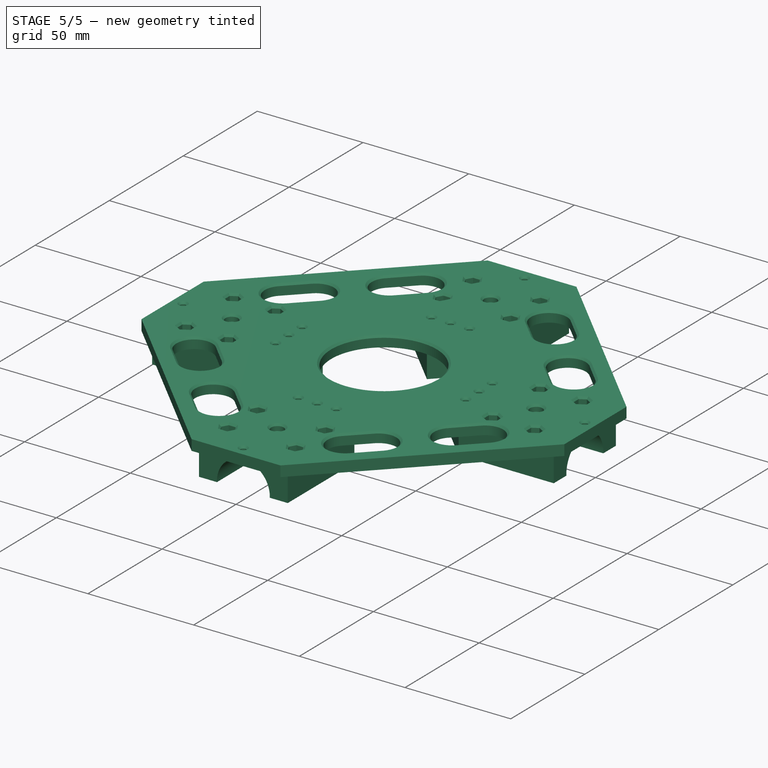
[diagram: stage 5 of 5 — iso view after this stage's code; geometry added in this stage tinted green]
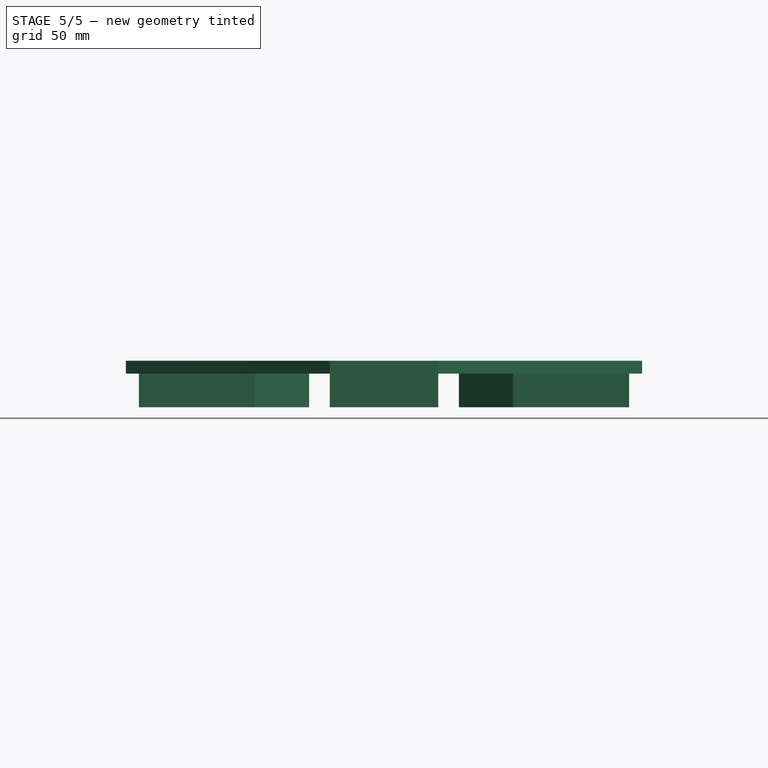
[diagram: stage 5 of 5 — front view after this stage's code; geometry added in this stage tinted green]
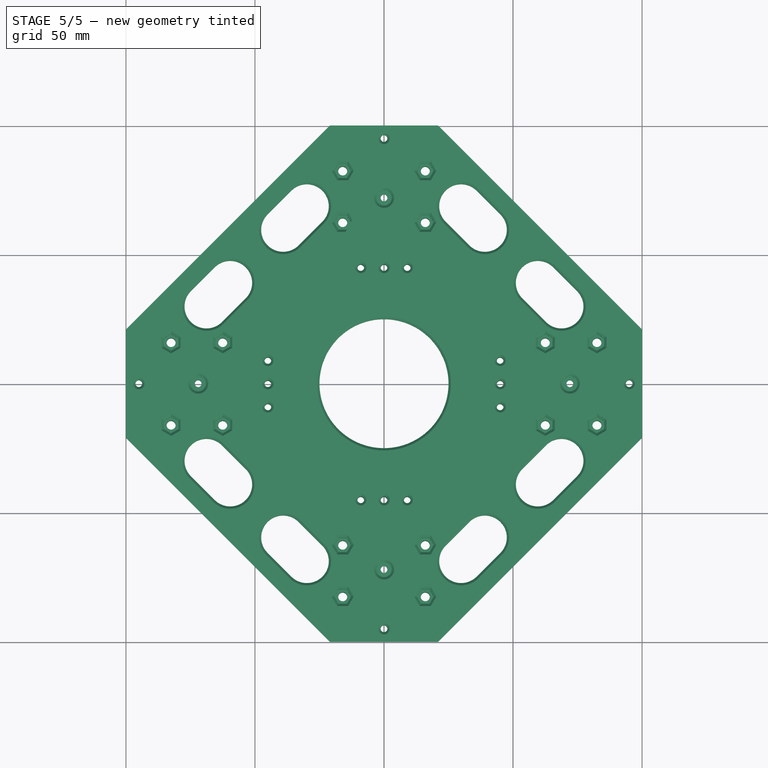
[diagram: stage 5 of 5 — top view after this stage's code; geometry added in this stage tinted green]
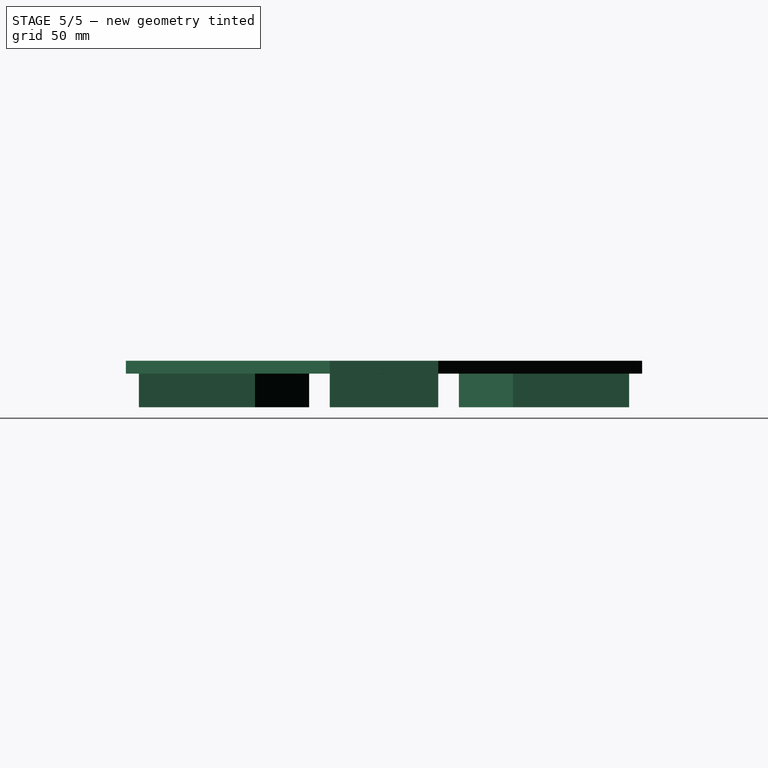
[diagram: stage 5 of 5 — right view after this stage's code; geometry added in this stage tinted green]
FEATURE [Part::Cut] Cut001
  Base = -> Cut
  Tool = -> Fusion001
FEATURE [Part::Cut] Cut002
  Base = -> Cut001
  Tool = -> Fusion006
FEATURE [Part::Cut] Cut003
  Base = -> Cut002
  Tool = -> Extrude010
FEATURE [Part::Cut] Cut004
  Base = -> Cut003
  Tool = -> Fusion007
FEATURE [Part::Chamfer] Chamfer
  Base = -> Cut004
  Edges = 148 edges r=0.9: [Edge33,Edge34,Edge35,Edge36,Edge37,Edge38,Edge39,Edge40,Edge41,Edge42,Edge43,Edge44,Edge45,Edge46,Edge47,Edge48,Edge49,Edge50,Edge51,Edge52,Edge53,Edge54,Edge55,Edge56,Edge57,Edge58,Edge59,Edge60,Edge61,Edge62,Edge63,Edge64,Edge65,Edge66,Edge67,Edge68,Edge69,Edge70,Edge71,Edge72,Edge73,Edge74,+106 more]
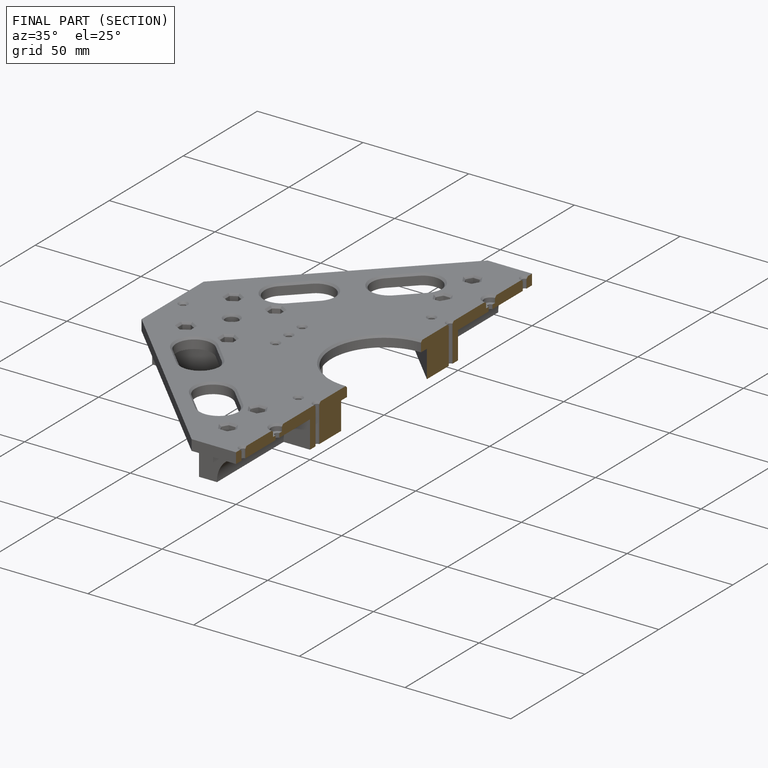
[diagram: finished part — half-section view (interior)]
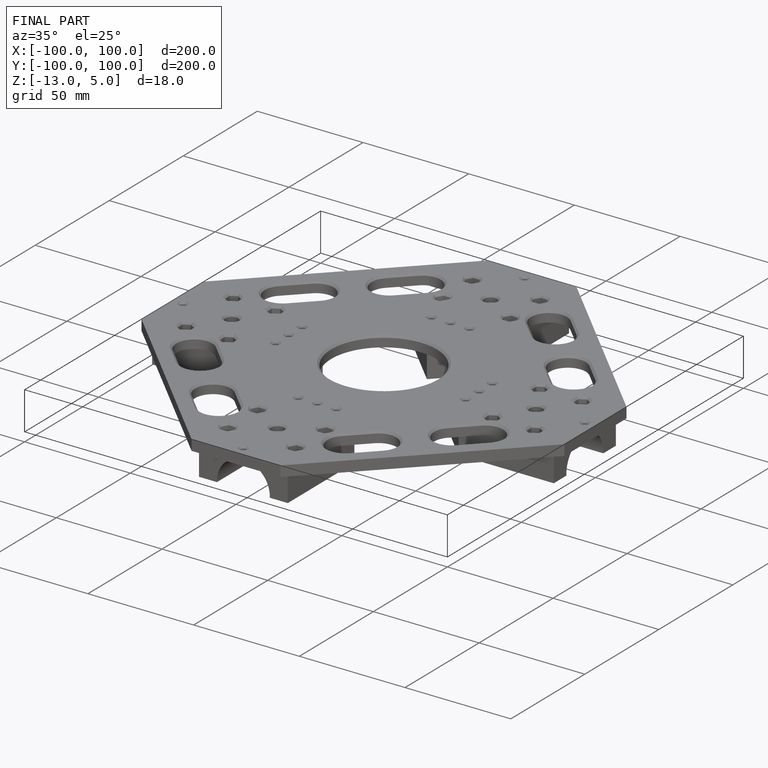
[diagram: finished part — iso view with bounding-box wireframe]
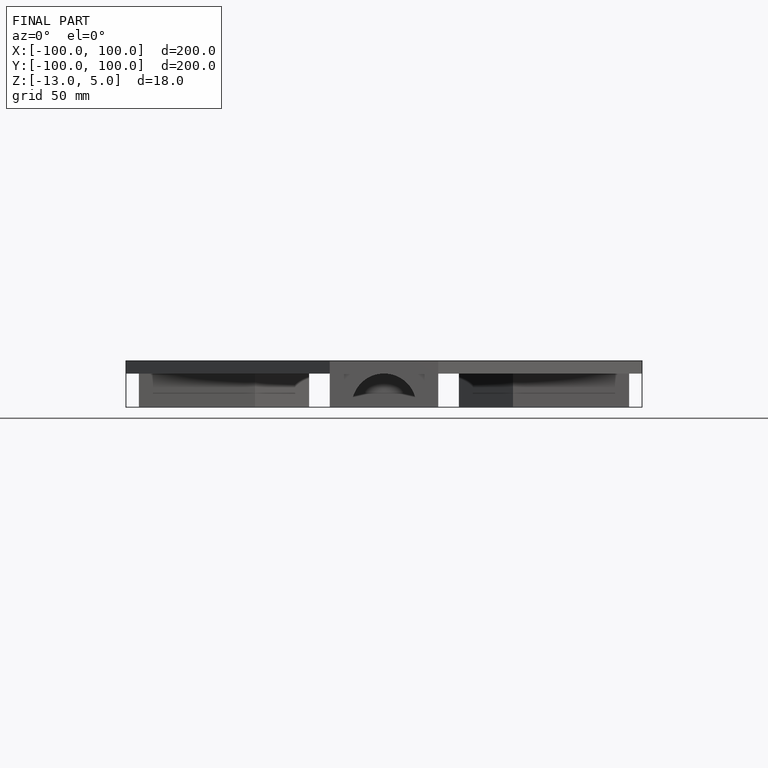
[diagram: finished part — front view with bounding-box wireframe]
